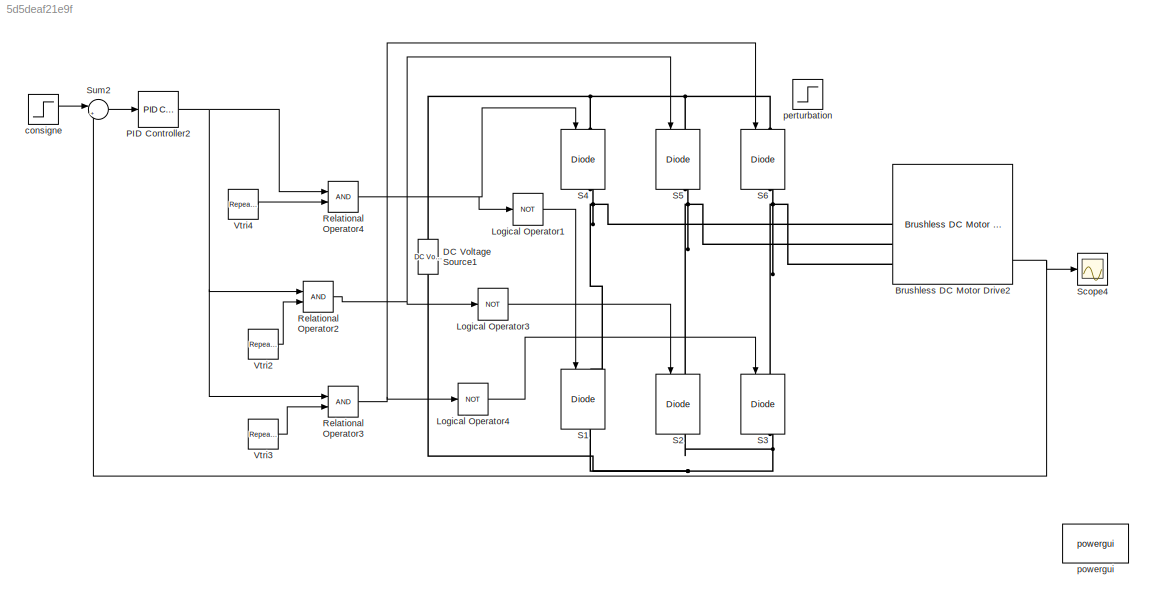
MODEL slx_5d5deaf21e9f
KIND model
CONFIG AbsTol = auto
CONFIG EnableMultiTasking = on
CONFIG FixedStep = auto
CONFIG MaxStep = auto
CONFIG MinStep = auto
CONFIG RelTol = 1e-3
CONFIG SampleTimeConstraint = Unconstrained
CONFIG SolverName = ode45
CONFIG StartTime = 0.0
CONFIG StopTime = 2.0
BLOCK [Reference] Brushless DC Motor Drive2  REF=electricdrivelib/AC drives/Brushless DC Motor Drive
  Ports = [2, 4, 0, 0, 0, 3]
  SourceBlock = electricdrivelib/AC drives/Brushless DC Motor Drive
  SourceProductBaseCode = PS
  SourceType = Brushless DC Motor Drive
BLOCK [Reference] DC Voltage Source1  REF=spsDCVoltageSourceLib/DC Voltage Source
  NameLocation = right
  Ports = [0, 0, 0, 0, 0, 1, 1]
  SourceBlock = spsDCVoltageSourceLib/DC Voltage Source
  SourceProductBaseCode = PS
  SourceType = DC Voltage Source
BLOCK [Logic] Logical Operator1
  AllPortsSameDT = off
  Operator = NOT
  OutDataTypeStr = boolean
  Ports = [1, 1]
BLOCK [Logic] Logical Operator3
  AllPortsSameDT = off
  Operator = NOT
  OutDataTypeStr = boolean
  Ports = [1, 1]
BLOCK [Logic] Logical Operator4
  AllPortsSameDT = off
  Operator = NOT
  OutDataTypeStr = boolean
  Ports = [1, 1]
BLOCK [Reference] PID Controller2  REF=pid_lib/PID Controller
  Ports = [1, 1]
  SourceBlock = pid_lib/PID Controller
  SourceProductBaseCode = SL
  SourceType = PID 1dof
BLOCK [RelationalOperator] Relational Operator2
  InputSameDT = off
  OutDataTypeStr = boolean
  Ports = [2, 1]
BLOCK [RelationalOperator] Relational Operator3
  InputSameDT = off
  OutDataTypeStr = boolean
  Ports = [2, 1]
BLOCK [RelationalOperator] Relational Operator4
  InputSameDT = off
  OutDataTypeStr = boolean
  Ports = [2, 1]
BLOCK [Reference] S1  REF=spsIGBTDiodeLib/IGBT//Diode
  NameLocation = left
  Ports = [1, 1, 0, 0, 0, 1, 1]
  SourceBlock = spsIGBTDiodeLib/IGBT//Diode
  SourceProductBaseCode = PS
  SourceType = IGBT/Diode
BLOCK [Reference] S2  REF=spsIGBTDiodeLib/IGBT//Diode
  NameLocation = left
  Ports = [1, 1, 0, 0, 0, 1, 1]
  SourceBlock = spsIGBTDiodeLib/IGBT//Diode
  SourceProductBaseCode = PS
  SourceType = IGBT/Diode
BLOCK [Reference] S3  REF=spsIGBTDiodeLib/IGBT//Diode
  NameLocation = left
  Ports = [1, 1, 0, 0, 0, 1, 1]
  SourceBlock = spsIGBTDiodeLib/IGBT//Diode
  SourceProductBaseCode = PS
  SourceType = IGBT/Diode
BLOCK [Reference] S4  REF=spsIGBTDiodeLib/IGBT//Diode
  NameLocation = left
  Ports = [1, 1, 0, 0, 0, 1, 1]
  SourceBlock = spsIGBTDiodeLib/IGBT//Diode
  SourceProductBaseCode = PS
  SourceType = IGBT/Diode
BLOCK [Reference] S5  REF=spsIGBTDiodeLib/IGBT//Diode
  NameLocation = left
  Ports = [1, 1, 0, 0, 0, 1, 1]
  SourceBlock = spsIGBTDiodeLib/IGBT//Diode
  SourceProductBaseCode = PS
  SourceType = IGBT/Diode
BLOCK [Reference] S6  REF=spsIGBTDiodeLib/IGBT//Diode
  NameLocation = left
  Ports = [1, 1, 0, 0, 0, 1, 1]
  SourceBlock = spsIGBTDiodeLib/IGBT//Diode
  SourceProductBaseCode = PS
  SourceType = IGBT/Diode
BLOCK [Scope] Scope4
  Floating = off
  NumInputPorts = 1
  Ports = [1]
  ScopeSpecificationString = Simulink.scopes.TimeScopeBlockCfg('CurrentConfiguration', extmgr.ConfigurationSet(extmgr.Configuration('Core','General UI',true),extmgr.Configuration('Core','Source UI',true),extmgr.Configuration('Sources','WiredSimulink',true,'DataLogging',true,'DataLoggingVariableName','vitesse','DataLoggingSaveFormat','Array','DataLoggingDecimation','1','DataLoggingDecimateData',true),extmgr.Configuration('Visu...<+1909ch>
BLOCK [Sum] Sum2
  Inputs = |+-
  Ports = [2, 1]
BLOCK [Reference] Vtri2  REF=simulink/Sources/Repeating
Sequence
  Ports = [0, 1]
  SourceBlock = simulink/Sources/Repeating\nSequence
  SourceProductBaseCode = SL
  SourceType = Repeating table
BLOCK [Reference] Vtri3  REF=simulink/Sources/Repeating
Sequence
  Ports = [0, 1]
  SourceBlock = simulink/Sources/Repeating\nSequence
  SourceProductBaseCode = SL
  SourceType = Repeating table
BLOCK [Reference] Vtri4  REF=simulink/Sources/Repeating
Sequence
  Ports = [0, 1]
  SourceBlock = simulink/Sources/Repeating\nSequence
  SourceProductBaseCode = SL
  SourceType = Repeating table
BLOCK [Step] consigne
  After = 150
  SampleTime = 0
  Time = 0
BLOCK [Step] perturbation
  After = 10
  SampleTime = 0
  Time = 0.2
BLOCK [Reference] powergui  REF=spspowerguiLib/powergui
  Ports = []
  Priority = 1
  SourceBlock = spspowerguiLib/powergui
  SourceProductBaseCode = PS
  SourceType = PSB option menu block
NET Brushless DC Motor Drive2:4 -> Scope4:1, Sum2:2
LINE Logical Operator1:1 -> S1:1
LINE Logical Operator3:1 -> S2:1
LINE Logical Operator4:1 -> S3:1
NET PID Controller2:1 -> Relational Operator2:1, Relational Operator3:1, Relational Operator4:1
NET Relational Operator2:1 -> Logical Operator3:1, S5:1
NET Relational Operator3:1 -> Logical Operator4:1, S6:1
NET Relational Operator4:1 -> Logical Operator1:1, S4:1
LINE Sum2:1 -> PID Controller2:1
LINE Vtri2:1 -> Relational Operator2:2
LINE Vtri3:1 -> Relational Operator3:2
LINE Vtri4:1 -> Relational Operator4:2
LINE consigne:1 -> Sum2:1
PNET net1: Brushless DC Motor Drive2:LConn1 -- S1:LConn1 -- S4:RConn1
PNET net2: Brushless DC Motor Drive2:LConn2 -- S2:LConn1 -- S5:RConn1
PNET net3: Brushless DC Motor Drive2:LConn3 -- S3:LConn1 -- S6:RConn1
PNET net4: DC Voltage Source1:LConn1 -- S1:RConn1 -- S2:RConn1 -- S3:RConn1
PNET net5: DC Voltage Source1:RConn1 -- S4:LConn1 -- S5:LConn1 -- S6:LConn1
note: NET lines group one-source signal fan-out (src -> all destinations, sorted); 1:1 wires keep LINE; PNET lines group multi-terminal physical nets as a canonical sorted terminal list (undirected conserving connections); 2-terminal nets keep the pairwise PLINE form
